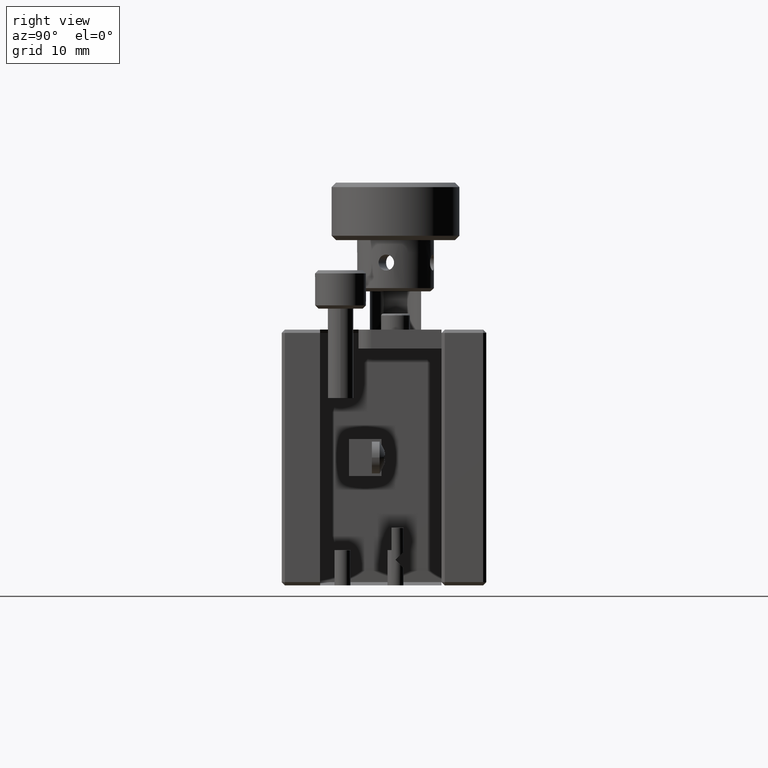
[diagram: clean part render]
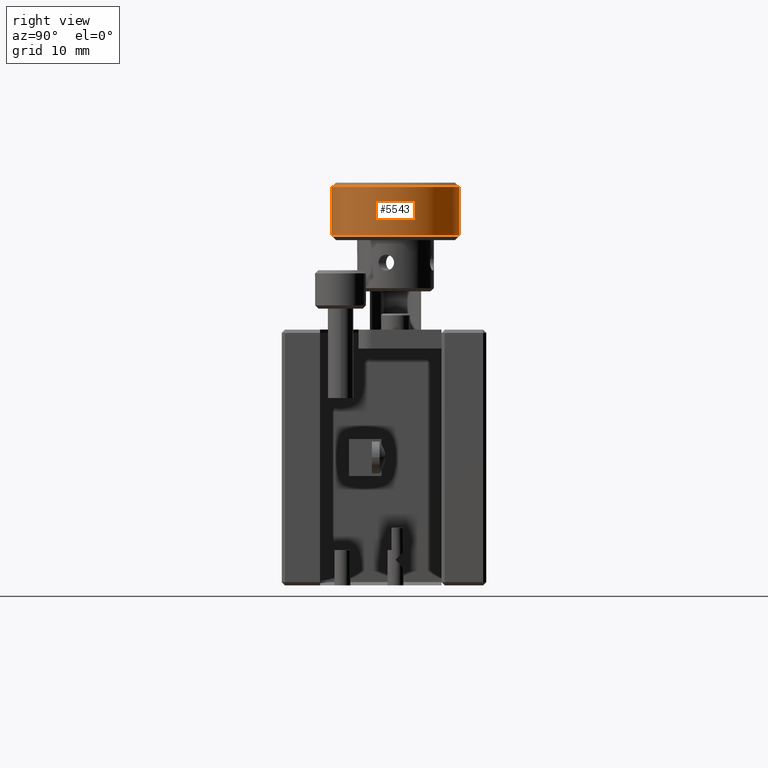
[diagram: same view with one face highlighted and labeled with its STEP entity id]
A machine part, right view. The second image highlights one B-rep face of the part: STEP entity #5543.
In plain terms, the highlighted cylindrical surface (bore or boss wall) has radius 10 mm, axis along (-0, -0, -1).
Its self-contained STEP definition (entity closure, byte-faithful):
#265 = CARTESIAN_POINT ( 'NONE',  ( 20.61330177514795281, 25.35204733727841031, 34.69999999999993889 ) ) ;
#463 = CIRCLE ( 'NONE', #18048, 10.00000000000000178 ) ;
#544 = EDGE_LOOP ( 'NONE', ( #6515 ) ) ;
#2340 = EDGE_CURVE ( 'NONE', #6861, #6861, #463, .T. ) ;
#2432 = CARTESIAN_POINT ( 'NONE',  ( 20.61330177514795636, 35.35204733727844228, 42.29999999999989768 ) ) ;
#2994 = CYLINDRICAL_SURFACE ( 'NONE', #13246, 9.999999999999998224 ) ;
#5543 = ADVANCED_FACE ( 'NONE', ( #11362, #19943 ), #2994, .T. ) ;
#5832 = CIRCLE ( 'NONE', #19893, 9.999999999999998224 ) ;
#5848 = VERTEX_POINT ( 'NONE', #2432 ) ;
#6187 = DIRECTION ( 'NONE',  ( 0.000000000000000000, 1.000000000000000000, -4.163336342344337815E-15 ) ) ;
#6515 = ORIENTED_EDGE ( 'NONE', *, *, #2340, .T. ) ;
#6861 = VERTEX_POINT ( 'NONE', #11925 ) ;
#10622 = DIRECTION ( 'NONE',  ( 0.000000000000000000, 1.000000000000000000, -4.163336342344336238E-15 ) ) ;
#10938 = EDGE_CURVE ( 'NONE', #5848, #5848, #5832, .T. ) ;
#11048 = DIRECTION ( 'NONE',  ( -1.387778780781445676E-16, -4.284224884576470771E-15, -1.000000000000000000 ) ) ;
#11362 = FACE_OUTER_BOUND ( 'NONE', #544, .T. ) ;
#11597 = EDGE_LOOP ( 'NONE', ( #21054 ) ) ;
#11925 = CARTESIAN_POINT ( 'NONE',  ( 20.61330177514795281, 35.35204733727841386, 34.69999999999989626 ) ) ;
#13246 = AXIS2_PLACEMENT_3D ( 'NONE', #18190, #11048, #6187 ) ;
#15350 = CARTESIAN_POINT ( 'NONE',  ( 20.61330177514795636, 25.35204733727843873, 42.29999999999994031 ) ) ;
#15573 = DIRECTION ( 'NONE',  ( 1.387778780781445676E-16, 4.284224884576470771E-15, 1.000000000000000000 ) ) ;
#16794 = DIRECTION ( 'NONE',  ( -1.387778780781445676E-16, -4.284224884576470771E-15, -1.000000000000000000 ) ) ;
#18048 = AXIS2_PLACEMENT_3D ( 'NONE', #265, #15573, #10622 ) ;
#18190 = CARTESIAN_POINT ( 'NONE',  ( 20.61330177514795281, 25.35204733727837834, 27.49999999999993605 ) ) ;
#19893 = AXIS2_PLACEMENT_3D ( 'NONE', #15350, #16794, #20288 ) ;
#19943 = FACE_OUTER_BOUND ( 'NONE', #11597, .T. ) ;
#20288 = DIRECTION ( 'NONE',  ( 0.000000000000000000, 1.000000000000000000, -4.163336342344337815E-15 ) ) ;
#21054 = ORIENTED_EDGE ( 'NONE', *, *, #10938, .T. ) ;